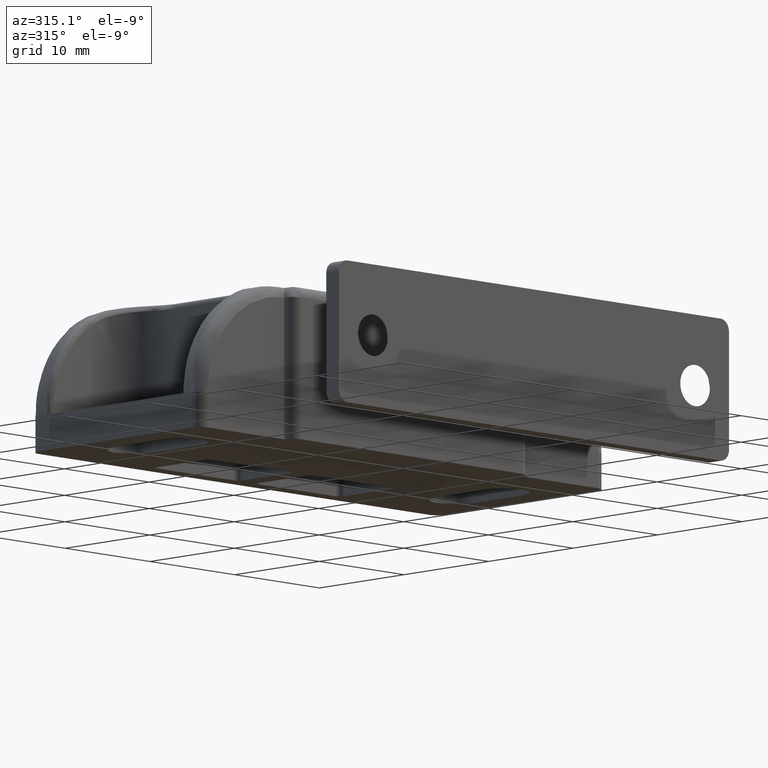
[diagram: clean part render]
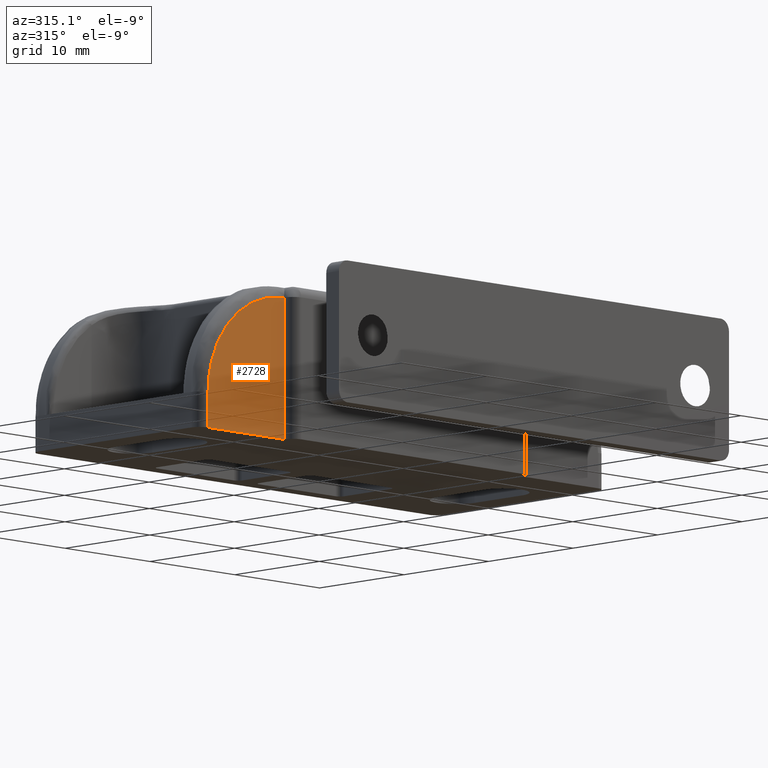
[diagram: same view with one face highlighted and labeled with its STEP entity id]
A machine part, auxiliary view. The second image highlights one B-rep face of the part: STEP entity #2728.
In plain terms, the highlighted face is a freeform B-spline surface patch.
Its self-contained STEP definition (entity closure, byte-faithful):
#2501=CARTESIAN_POINT('',(-14.000000000000661,-9.999999999999789,0.0));
#2502=VERTEX_POINT('',#2501);
#2523=CARTESIAN_POINT('',(-14.000000000000661,-9.999999999999799,12.0));
#2524=VERTEX_POINT('',#2523);
#2538=CARTESIAN_POINT('',(-14.000000000000661,-9.999999999999789,0.0));
#2539=CARTESIAN_POINT('',(-14.000000000000661,-9.999999999999799,12.0));
#2540=QUASI_UNIFORM_CURVE('',1,(#2538,#2539),.UNSPECIFIED.,.F.,.U.);
#2541=EDGE_CURVE('',#2502,#2524,#2540,.T.);
#2693=CARTESIAN_POINT('',(-23.449549982559532,-9.999999999999799,12.599399976741671));
#2694=CARTESIAN_POINT('',(-13.550449776045470,-9.999999999999799,12.599399976741671));
#2695=CARTESIAN_POINT('',(-23.449549982559532,-9.999999999999799,-0.599400298606753));
#2696=CARTESIAN_POINT('',(-13.550449776045470,-9.999999999999799,-0.599400298606753));
#2697=B_SPLINE_SURFACE_WITH_KNOTS('',1,1,((#2693,#2695),(#2694,#2696)),.UNSPECIFIED.,.F.,.F.,.U.,(2,2),(2,2),(0.0,9.899100206514063),(0.0,13.198800275348420),.UNSPECIFIED.);
#2698=CARTESIAN_POINT('',(-22.999999999996799,-9.999999999999799,3.0));
#2699=VERTEX_POINT('',#2698);
#2700=CARTESIAN_POINT('',(-14.000000000000661,-9.999999999999799,12.0));
#2701=CARTESIAN_POINT('',(-22.999999999996803,-9.999999999999801,12.0));
#2702=CARTESIAN_POINT('',(-22.999999999996799,-9.999999999999799,3.0));
#2710=(BOUNDED_CURVE()B_SPLINE_CURVE(2,(#2700,#2701,#2702),.UNSPECIFIED.,.F.,.U.)CURVE()GEOMETRIC_REPRESENTATION_ITEM()QUASI_UNIFORM_CURVE()RATIONAL_B_SPLINE_CURVE((1.0,0.707106781186547,1.0))REPRESENTATION_ITEM(''));
#2711=EDGE_CURVE('',#2524,#2699,#2710,.T.);
#2712=ORIENTED_EDGE('',*,*,#2711,.T.);
#2713=CARTESIAN_POINT('',(-23.000000000003151,-9.999999999999799,0.0));
#2714=VERTEX_POINT('',#2713);
#2715=CARTESIAN_POINT('',(-22.999999999996799,-9.999999999999799,3.0));
#2716=CARTESIAN_POINT('',(-23.000000000003151,-9.999999999999799,0.0));
#2717=QUASI_UNIFORM_CURVE('',1,(#2715,#2716),.UNSPECIFIED.,.F.,.U.);
#2718=EDGE_CURVE('',#2699,#2714,#2717,.T.);
#2719=ORIENTED_EDGE('',*,*,#2718,.T.);
#2720=CARTESIAN_POINT('',(-14.000000000000661,-9.999999999999789,0.0));
#2721=CARTESIAN_POINT('',(-23.000000000003151,-9.999999999999799,0.0));
#2722=QUASI_UNIFORM_CURVE('',1,(#2720,#2721),.UNSPECIFIED.,.F.,.U.);
#2723=EDGE_CURVE('',#2502,#2714,#2722,.T.);
#2724=ORIENTED_EDGE('',*,*,#2723,.F.);
#2725=ORIENTED_EDGE('',*,*,#2541,.T.);
#2726=EDGE_LOOP('',(#2712,#2719,#2724,#2725));
#2727=FACE_OUTER_BOUND('',#2726,.T.);
#2728=ADVANCED_FACE('',(#2727),#2697,.F.);